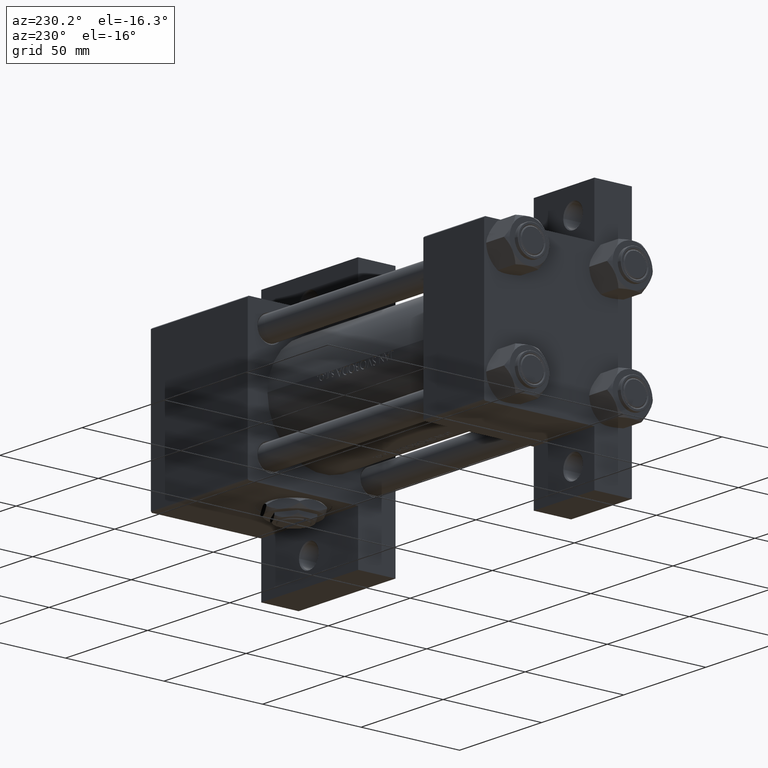
[diagram: clean part render]
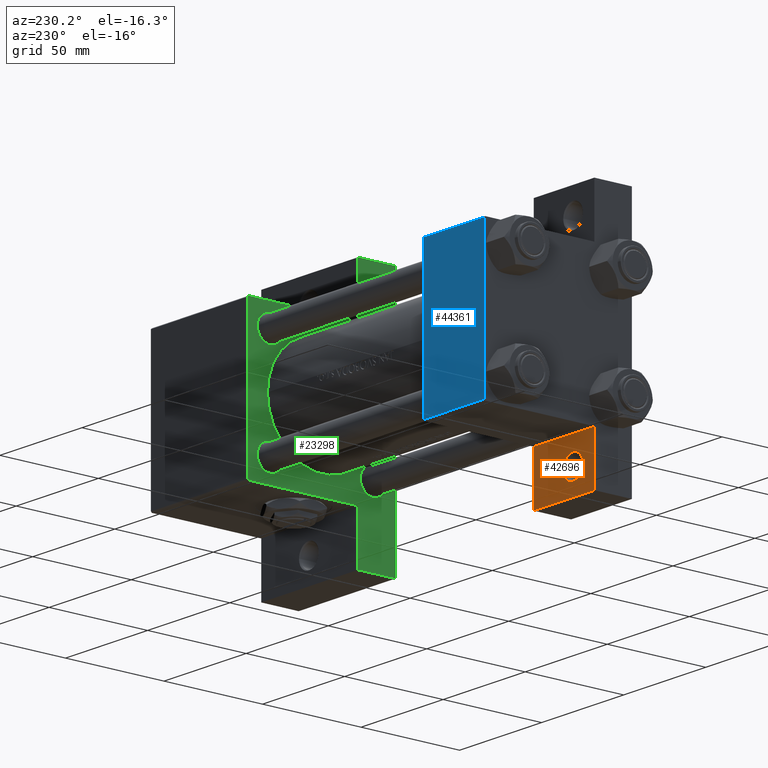
[diagram: same view with three faces highlighted in distinct colors, each labeled with its STEP entity id]
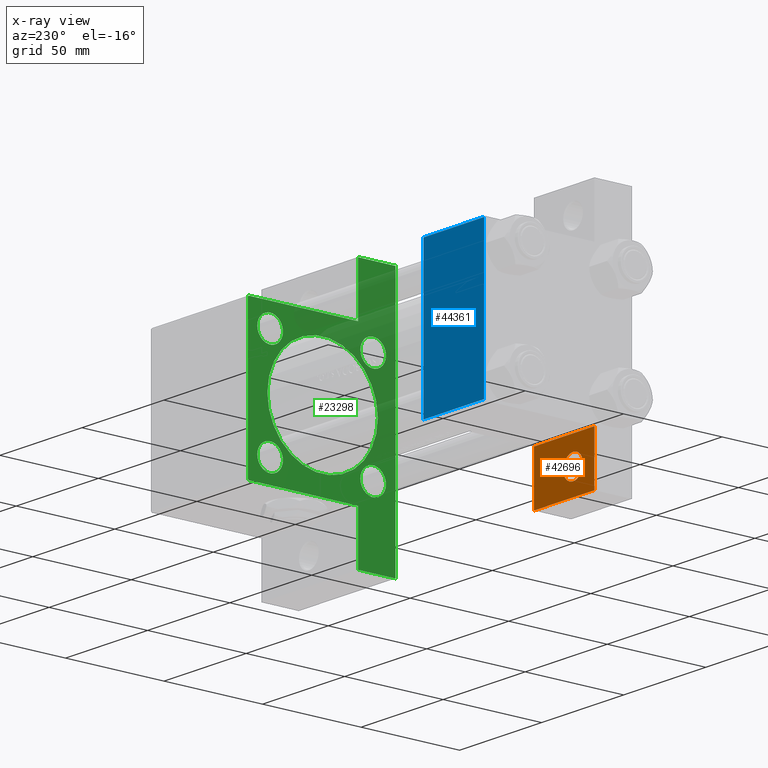
[diagram: x-ray of the same camera — body ghosted, the three highlighted faces saturated]
A machine part, auxiliary view with three faces highlighted in distinct colors.
The next image is the same camera in x-ray (body ghosted, the three faces saturated) — at least one of them is partly hidden behind the body in this view.
Their STEP definitions:

[orange] entity #42696 — the highlighted planar face has unit normal (0, -1, 0).
#319 = CARTESIAN_POINT ( 'NONE',  ( 1.595073532467135441E-14, 63.50000000000000000, -18.50000000000000355 ) ) ;
#596 = VECTOR ( 'NONE', #14226, 1000.000000000000000 ) ;
#942 = DIRECTION ( 'NONE',  ( 0.000000000000000000, 0.000000000000000000, -1.000000000000000000 ) ) ;
#1791 = EDGE_CURVE ( 'NONE', #32735, #48386, #44999, .T. ) ;
#3160 = AXIS2_PLACEMENT_3D ( 'NONE', #19047, #22535, #45952 ) ;
#4947 = VERTEX_POINT ( 'NONE', #20539 ) ;
#5034 = CARTESIAN_POINT ( 'NONE',  ( 12.99999999999999822, 50.99999999999998579, -18.50000000000000000 ) ) ;
#5996 = CARTESIAN_POINT ( 'NONE',  ( 1.595073532467135757E-14, 63.50000000000001421, -18.50000000000000355 ) ) ;
#10481 = AXIS2_PLACEMENT_3D ( 'NONE', #5034, #46642, #19260 ) ;
#11071 = ORIENTED_EDGE ( 'NONE', *, *, #14322, .T. ) ;
#11105 = CARTESIAN_POINT ( 'NONE',  ( 0.000000000000000000, 37.49999999999999289, -18.49999999999999645 ) ) ;
#14226 = DIRECTION ( 'NONE',  ( -2.877097866686192789E-16, -1.000000000000000000, 0.000000000000000000 ) ) ;
#14322 = EDGE_CURVE ( 'NONE', #30459, #32735, #40136, .T. ) ;
#15316 = CARTESIAN_POINT ( 'NONE',  ( 37.00000000000001421, 63.50000000000000000, -18.50000000000000355 ) ) ;
#15632 = CARTESIAN_POINT ( 'NONE',  ( 18.99950000000004735, 50.99999999999998579, -18.50000000000000000 ) ) ;
#16071 = CARTESIAN_POINT ( 'NONE',  ( 37.00000000000000711, 37.50000000000000711, -18.50000000000000355 ) ) ;
#16128 = DIRECTION ( 'NONE',  ( -1.000000000000000000, 0.000000000000000000, 0.000000000000000000 ) ) ;
#17072 = EDGE_LOOP ( 'NONE', ( #11071, #48253, #24653, #47952 ) ) ;
#18549 = DIRECTION ( 'NONE',  ( -1.000000000000000000, 0.000000000000000000, 0.000000000000000000 ) ) ;
#18974 = VECTOR ( 'NONE', #20632, 1000.000000000000000 ) ;
#19047 = CARTESIAN_POINT ( 'NONE',  ( 0.000000000000000000, 0.000000000000000000, -18.50000000000000000 ) ) ;
#19260 = DIRECTION ( 'NONE',  ( -1.000000000000000000, 0.000000000000000000, 0.000000000000000000 ) ) ;
#20539 = CARTESIAN_POINT ( 'NONE',  ( 7.000499999999947320, 50.99999999999998579, -18.50000000000000000 ) ) ;
#20632 = DIRECTION ( 'NONE',  ( 2.668805347656626678E-16, 1.000000000000000000, 0.000000000000000000 ) ) ;
#22335 = VERTEX_POINT ( 'NONE', #15316 ) ;
#22535 = DIRECTION ( 'NONE',  ( 0.000000000000000000, 0.000000000000000000, -1.000000000000000000 ) ) ;
#23029 = PLANE ( 'NONE',  #3160 ) ;
#24653 = ORIENTED_EDGE ( 'NONE', *, *, #41322, .T. ) ;
#26111 = EDGE_LOOP ( 'NONE', ( #33701, #35672 ) ) ;
#26502 = FACE_OUTER_BOUND ( 'NONE', #17072, .T. ) ;
#27026 = AXIS2_PLACEMENT_3D ( 'NONE', #38554, #942, #16128 ) ;
#29879 = VERTEX_POINT ( 'NONE', #15632 ) ;
#29992 = FACE_BOUND ( 'NONE', #26111, .T. ) ;
#30459 = VERTEX_POINT ( 'NONE', #319 ) ;
#31092 = LINE ( 'NONE', #46314, #44428 ) ;
#31567 = LINE ( 'NONE', #46788, #18974 ) ;
#32573 = CIRCLE ( 'NONE', #27026, 5.999500000000050015 ) ;
#32735 = VERTEX_POINT ( 'NONE', #11105 ) ;
#33701 = ORIENTED_EDGE ( 'NONE', *, *, #44019, .T. ) ;
#34323 = CIRCLE ( 'NONE', #10481, 5.999500000000050015 ) ;
#35672 = ORIENTED_EDGE ( 'NONE', *, *, #48624, .T. ) ;
#36815 = EDGE_CURVE ( 'NONE', #22335, #30459, #31092, .T. ) ;
#37266 = DIRECTION ( 'NONE',  ( 1.000000000000000000, -3.750753461571474945E-16, 0.000000000000000000 ) ) ;
#38554 = CARTESIAN_POINT ( 'NONE',  ( 12.99999999999999822, 50.99999999999998579, -18.50000000000000000 ) ) ;
#40136 = LINE ( 'NONE', #5996, #596 ) ;
#41322 = EDGE_CURVE ( 'NONE', #48386, #22335, #31567, .T. ) ;
#42696 = ADVANCED_FACE ( 'NONE', ( #29992, #26502 ), #23029, .F. ) ;
#44016 = CARTESIAN_POINT ( 'NONE',  ( 8.470280871287256020E-15, 37.50000000000002842, -18.49999999999999645 ) ) ;
#44019 = EDGE_CURVE ( 'NONE', #29879, #4947, #32573, .T. ) ;
#44428 = VECTOR ( 'NONE', #18549, 1000.000000000000000 ) ;
#44999 = LINE ( 'NONE', #44016, #48001 ) ;
#45952 = DIRECTION ( 'NONE',  ( -1.000000000000000000, 0.000000000000000000, -0.000000000000000000 ) ) ;
#46314 = CARTESIAN_POINT ( 'NONE',  ( 1.595073532467135441E-14, 63.50000000000000000, -18.50000000000000355 ) ) ;
#46642 = DIRECTION ( 'NONE',  ( 0.000000000000000000, 0.000000000000000000, -1.000000000000000000 ) ) ;
#46788 = CARTESIAN_POINT ( 'NONE',  ( 37.00000000000001421, 63.50000000000001421, -18.50000000000000355 ) ) ;
#47952 = ORIENTED_EDGE ( 'NONE', *, *, #36815, .T. ) ;
#48001 = VECTOR ( 'NONE', #37266, 1000.000000000000000 ) ;
#48253 = ORIENTED_EDGE ( 'NONE', *, *, #1791, .T. ) ;
#48386 = VERTEX_POINT ( 'NONE', #16071 ) ;
#48624 = EDGE_CURVE ( 'NONE', #4947, #29879, #34323, .T. ) ;

[blue] entity #44361 — the highlighted planar face has unit normal (0, -1, -0).
#2847 = DIRECTION ( 'NONE',  ( 0.000000000000000000, -1.000000000000000000, -9.251858538542971581E-17 ) ) ;
#2954 = VECTOR ( 'NONE', #2847, 1000.000000000000000 ) ;
#3255 = CARTESIAN_POINT ( 'NONE',  ( 37.00000000000000000, -37.00000000000000711, 37.49999999999999289 ) ) ;
#6499 = CARTESIAN_POINT ( 'NONE',  ( 0.000000000000000000, 36.99999999999999289, 37.50000000000000000 ) ) ;
#7651 = CARTESIAN_POINT ( 'NONE',  ( 37.00000000000000000, 36.99999999999999289, 37.50000000000000000 ) ) ;
#7857 = PLANE ( 'NONE',  #34997 ) ;
#9148 = CARTESIAN_POINT ( 'NONE',  ( 0.000000000000000000, 36.99999999999999289, 37.50000000000000000 ) ) ;
#9251 = EDGE_CURVE ( 'NONE', #22815, #18495, #28547, .T. ) ;
#9263 = CARTESIAN_POINT ( 'NONE',  ( 0.000000000000000000, 37.49999999999999289, 37.50000000000000000 ) ) ;
#10573 = CARTESIAN_POINT ( 'NONE',  ( 37.00000000000000000, 37.49999999999999289, 37.50000000000000000 ) ) ;
#11363 = ORIENTED_EDGE ( 'NONE', *, *, #33868, .F. ) ;
#13282 = ORIENTED_EDGE ( 'NONE', *, *, #9251, .T. ) ;
#14092 = VECTOR ( 'NONE', #24839, 1000.000000000000000 ) ;
#14326 = LINE ( 'NONE', #10573, #2954 ) ;
#16733 = DIRECTION ( 'NONE',  ( 0.000000000000000000, -1.000000000000000000, -9.251858538542971581E-17 ) ) ;
#18495 = VERTEX_POINT ( 'NONE', #6499 ) ;
#19806 = CARTESIAN_POINT ( 'NONE',  ( 37.00000000000000000, 37.49999999999999289, 37.50000000000000000 ) ) ;
#22815 = VERTEX_POINT ( 'NONE', #7651 ) ;
#23057 = DIRECTION ( 'NONE',  ( 0.000000000000000000, 1.000000000000000000, 9.251858538542971581E-17 ) ) ;
#24839 = DIRECTION ( 'NONE',  ( -1.000000000000000000, 0.000000000000000000, 0.000000000000000000 ) ) ;
#26524 = LINE ( 'NONE', #33270, #45063 ) ;
#28163 = LINE ( 'NONE', #9263, #33083 ) ;
#28547 = LINE ( 'NONE', #9148, #14092 ) ;
#29032 = ORIENTED_EDGE ( 'NONE', *, *, #32799, .T. ) ;
#30564 = EDGE_CURVE ( 'NONE', #18495, #38668, #28163, .T. ) ;
#30754 = VERTEX_POINT ( 'NONE', #3255 ) ;
#32799 = EDGE_CURVE ( 'NONE', #38668, #30754, #26524, .T. ) ;
#33083 = VECTOR ( 'NONE', #16733, 1000.000000000000000 ) ;
#33223 = ORIENTED_EDGE ( 'NONE', *, *, #30564, .T. ) ;
#33270 = CARTESIAN_POINT ( 'NONE',  ( 37.00000000000000000, -37.00000000000000711, 37.49999999999999289 ) ) ;
#33868 = EDGE_CURVE ( 'NONE', #22815, #30754, #14326, .T. ) ;
#34035 = CARTESIAN_POINT ( 'NONE',  ( 0.000000000000000000, -37.00000000000000711, 37.49999999999999289 ) ) ;
#34733 = DIRECTION ( 'NONE',  ( 0.000000000000000000, 9.251858538542971581E-17, -1.000000000000000000 ) ) ;
#34997 = AXIS2_PLACEMENT_3D ( 'NONE', #19806, #34733, #23057 ) ;
#38668 = VERTEX_POINT ( 'NONE', #34035 ) ;
#40898 = EDGE_LOOP ( 'NONE', ( #33223, #29032, #11363, #13282 ) ) ;
#41737 = DIRECTION ( 'NONE',  ( 1.000000000000000000, 0.000000000000000000, 0.000000000000000000 ) ) ;
#41992 = FACE_OUTER_BOUND ( 'NONE', #40898, .T. ) ;
#44361 = ADVANCED_FACE ( 'NONE', ( #41992 ), #7857, .F. ) ;
#45063 = VECTOR ( 'NONE', #41737, 1000.000000000000000 ) ;

[green] entity #23298 — the highlighted planar face has unit normal (-1, 0, 0).
#7 = CARTESIAN_POINT ( 'NONE',  ( 144.0000000000000000, 3.429011037612589276E-15, -28.50000000000000000 ) ) ;
#217 = VERTEX_POINT ( 'NONE', #41351 ) ;
#578 = VERTEX_POINT ( 'NONE', #15552 ) ;
#1364 = VERTEX_POINT ( 'NONE', #7 ) ;
#1460 = DIRECTION ( 'NONE',  ( 0.000000000000000000, 1.000000000000000000, 0.000000000000000000 ) ) ;
#1692 = FACE_BOUND ( 'NONE', #46158, .T. ) ;
#1767 = CARTESIAN_POINT ( 'NONE',  ( 144.0000000000000000, -37.50000000000000000, -18.50000000000000000 ) ) ;
#2792 = ORIENTED_EDGE ( 'NONE', *, *, #26667, .T. ) ;
#2951 = CARTESIAN_POINT ( 'NONE',  ( 144.0000000000000000, 26.14999999999999858, 32.65000000000000568 ) ) ;
#2965 = CARTESIAN_POINT ( 'NONE',  ( 144.0000000000000000, 26.14999999999999858, -32.65000000000001279 ) ) ;
#2967 = ORIENTED_EDGE ( 'NONE', *, *, #45633, .T. ) ;
#3061 = ORIENTED_EDGE ( 'NONE', *, *, #16899, .T. ) ;
#3106 = ORIENTED_EDGE ( 'NONE', *, *, #20677, .T. ) ;
#3307 = DIRECTION ( 'NONE',  ( 0.000000000000000000, 0.000000000000000000, 1.000000000000000000 ) ) ;
#3454 = DIRECTION ( 'NONE',  ( 0.000000000000000000, -1.000000000000000000, -1.850371707708594316E-16 ) ) ;
#3607 = EDGE_CURVE ( 'NONE', #1364, #41815, #46510, .T. ) ;
#3798 = VERTEX_POINT ( 'NONE', #13590 ) ;
#4104 = CARTESIAN_POINT ( 'NONE',  ( 144.0000000000000000, 37.50000000000000000, 37.49999999999999289 ) ) ;
#4222 = DIRECTION ( 'NONE',  ( 1.000000000000000000, 0.000000000000000000, -0.000000000000000000 ) ) ;
#4342 = LINE ( 'NONE', #34725, #16661 ) ;
#4431 = CARTESIAN_POINT ( 'NONE',  ( 144.0000000000000000, 37.50000000000000000, 37.49999999999999289 ) ) ;
#4507 = CARTESIAN_POINT ( 'NONE',  ( 144.0000000000000000, -36.99999999999994316, 37.49999999999997868 ) ) ;
#5066 = CIRCLE ( 'NONE', #15407, 6.500000000000008882 ) ;
#6152 = FACE_OUTER_BOUND ( 'NONE', #20440, .T. ) ;
#6397 = VECTOR ( 'NONE', #1460, 1000.000000000000000 ) ;
#6708 = ORIENTED_EDGE ( 'NONE', *, *, #46987, .T. ) ;
#7047 = DIRECTION ( 'NONE',  ( 1.000000000000000000, 0.000000000000000000, -0.000000000000000000 ) ) ;
#7213 = DIRECTION ( 'NONE',  ( 0.000000000000000000, -9.251858538542972814E-17, -1.000000000000000000 ) ) ;
#7297 = LINE ( 'NONE', #15517, #32977 ) ;
#7415 = CARTESIAN_POINT ( 'NONE',  ( 144.0000000000000000, 26.14999999999999858, 26.15000000000000213 ) ) ;
#7700 = CARTESIAN_POINT ( 'NONE',  ( 144.0000000000000000, -37.50000000000000000, 37.49999999999997868 ) ) ;
#7831 = CARTESIAN_POINT ( 'NONE',  ( 144.0000000000000000, -26.14999999999999147, -26.15000000000000924 ) ) ;
#7972 = VECTOR ( 'NONE', #7213, 1000.000000000000000 ) ;
#8010 = CARTESIAN_POINT ( 'NONE',  ( 144.0000000000000284, 63.49999999999997158, -37.50000000000000000 ) ) ;
#8063 = EDGE_LOOP ( 'NONE', ( #6708, #10012 ) ) ;
#8225 = CARTESIAN_POINT ( 'NONE',  ( 144.0000000000000000, 0.000000000000000000, -0.5000000000000004441 ) ) ;
#8546 = VERTEX_POINT ( 'NONE', #22519 ) ;
#8653 = CIRCLE ( 'NONE', #10266, 6.500000000000008882 ) ;
#8752 = DIRECTION ( 'NONE',  ( 1.000000000000000000, 0.000000000000000000, -0.000000000000000000 ) ) ;
#8929 = EDGE_CURVE ( 'NONE', #33828, #35925, #26671, .T. ) ;
#9002 = CARTESIAN_POINT ( 'NONE',  ( 144.0000000000000000, 26.14999999999999858, 26.15000000000000213 ) ) ;
#9458 = ORIENTED_EDGE ( 'NONE', *, *, #38161, .T. ) ;
#10012 = ORIENTED_EDGE ( 'NONE', *, *, #44022, .T. ) ;
#10266 = AXIS2_PLACEMENT_3D ( 'NONE', #10599, #41236, #37485 ) ;
#10599 = CARTESIAN_POINT ( 'NONE',  ( 144.0000000000000000, -26.14999999999999147, 26.15000000000000924 ) ) ;
#11007 = CIRCLE ( 'NONE', #18967, 28.00000000000000000 ) ;
#11084 = DIRECTION ( 'NONE',  ( 0.000000000000000000, 0.000000000000000000, 1.000000000000000000 ) ) ;
#11482 = EDGE_LOOP ( 'NONE', ( #28057, #42384 ) ) ;
#11499 = CARTESIAN_POINT ( 'NONE',  ( 144.0000000000000284, 63.49999999999997158, -18.50000000000000000 ) ) ;
#11747 = DIRECTION ( 'NONE',  ( 0.000000000000000000, -1.000000000000000000, 0.000000000000000000 ) ) ;
#12087 = DIRECTION ( 'NONE',  ( 1.000000000000000000, 0.000000000000000000, -0.000000000000000000 ) ) ;
#12193 = CARTESIAN_POINT ( 'NONE',  ( 144.0000000000000000, -26.14999999999999147, 26.15000000000000924 ) ) ;
#12375 = AXIS2_PLACEMENT_3D ( 'NONE', #7415, #45783, #15397 ) ;
#13144 = FACE_BOUND ( 'NONE', #8063, .T. ) ;
#13402 = CARTESIAN_POINT ( 'NONE',  ( 144.0000000000000000, 0.000000000000000000, 0.000000000000000000 ) ) ;
#13590 = CARTESIAN_POINT ( 'NONE',  ( 144.0000000000000000, 26.14999999999999858, -19.64999999999999503 ) ) ;
#13625 = CARTESIAN_POINT ( 'NONE',  ( 144.0000000000000000, -26.14999999999999147, -32.65000000000002700 ) ) ;
#14343 = AXIS2_PLACEMENT_3D ( 'NONE', #42053, #19376, #30812 ) ;
#15332 = CARTESIAN_POINT ( 'NONE',  ( 144.0000000000000284, 63.49999999999997158, -18.50000000000000000 ) ) ;
#15397 = DIRECTION ( 'NONE',  ( 0.000000000000000000, 0.000000000000000000, 1.000000000000000000 ) ) ;
#15407 = AXIS2_PLACEMENT_3D ( 'NONE', #41182, #7047, #3307 ) ;
#15517 = CARTESIAN_POINT ( 'NONE',  ( 144.0000000000000000, 37.25000000000000711, 37.25000000000000711 ) ) ;
#15552 = CARTESIAN_POINT ( 'NONE',  ( 144.0000000000000000, -26.14999999999999147, 32.65000000000001990 ) ) ;
#15592 = VERTEX_POINT ( 'NONE', #42138 ) ;
#15819 = CARTESIAN_POINT ( 'NONE',  ( 144.0000000000000000, 26.14999999999999858, -26.15000000000000213 ) ) ;
#15841 = VERTEX_POINT ( 'NONE', #41105 ) ;
#16105 = DIRECTION ( 'NONE',  ( 1.000000000000000000, 0.000000000000000000, 0.000000000000000000 ) ) ;
#16149 = LINE ( 'NONE', #31818, #6397 ) ;
#16661 = VECTOR ( 'NONE', #34243, 1000.000000000000000 ) ;
#16899 = EDGE_CURVE ( 'NONE', #41815, #1364, #11007, .T. ) ;
#17897 = EDGE_CURVE ( 'NONE', #19150, #217, #41281, .T. ) ;
#17957 = EDGE_CURVE ( 'NONE', #27690, #578, #8653, .T. ) ;
#18283 = LINE ( 'NONE', #44946, #37426 ) ;
#18373 = CIRCLE ( 'NONE', #37465, 6.500000000000008882 ) ;
#18604 = ORIENTED_EDGE ( 'NONE', *, *, #3607, .T. ) ;
#18967 = AXIS2_PLACEMENT_3D ( 'NONE', #38533, #16105, #39271 ) ;
#19150 = VERTEX_POINT ( 'NONE', #13625 ) ;
#19376 = DIRECTION ( 'NONE',  ( 1.000000000000000000, 0.000000000000000000, -0.000000000000000000 ) ) ;
#19544 = EDGE_CURVE ( 'NONE', #578, #27690, #33360, .T. ) ;
#19619 = VECTOR ( 'NONE', #11747, 1000.000000000000000 ) ;
#19941 = EDGE_LOOP ( 'NONE', ( #45023, #42527 ) ) ;
#20125 = ORIENTED_EDGE ( 'NONE', *, *, #8929, .T. ) ;
#20440 = EDGE_LOOP ( 'NONE', ( #41905, #33392, #2792, #2967, #9458, #20125, #47466, #3106, #32821, #41706 ) ) ;
#20677 = EDGE_CURVE ( 'NONE', #23131, #38252, #16149, .T. ) ;
#21046 = AXIS2_PLACEMENT_3D ( 'NONE', #8225, #23423, #38625 ) ;
#21309 = ORIENTED_EDGE ( 'NONE', *, *, #17957, .T. ) ;
#21587 = EDGE_CURVE ( 'NONE', #15841, #38252, #46072, .T. ) ;
#21784 = DIRECTION ( 'NONE',  ( 1.067522139062651657E-15, 1.000000000000000000, -0.000000000000000000 ) ) ;
#22519 = CARTESIAN_POINT ( 'NONE',  ( 144.0000000000000000, 37.50000000000000000, 37.00000000000002132 ) ) ;
#22954 = CARTESIAN_POINT ( 'NONE',  ( 144.0000000000000000, 37.50000000000000000, -37.50000000000000000 ) ) ;
#23131 = VERTEX_POINT ( 'NONE', #41805 ) ;
#23298 = ADVANCED_FACE ( 'NONE', ( #35792, #32777, #13144, #43275, #1692, #6152 ), #47510, .T. ) ;
#23423 = DIRECTION ( 'NONE',  ( 1.000000000000000000, 0.000000000000000000, 0.000000000000000000 ) ) ;
#24571 = VECTOR ( 'NONE', #3454, 1000.000000000000000 ) ;
#25777 = DIRECTION ( 'NONE',  ( 1.000000000000000000, 0.000000000000000000, -0.000000000000000000 ) ) ;
#26216 = DIRECTION ( 'NONE',  ( 0.000000000000000000, 0.7071067811865474617, -0.7071067811865474617 ) ) ;
#26224 = EDGE_CURVE ( 'NONE', #26280, #15592, #29583, .T. ) ;
#26280 = VERTEX_POINT ( 'NONE', #2951 ) ;
#26490 = VERTEX_POINT ( 'NONE', #27539 ) ;
#26545 = VECTOR ( 'NONE', #45234, 1000.000000000000000 ) ;
#26667 = EDGE_CURVE ( 'NONE', #8546, #45693, #30739, .T. ) ;
#26670 = DIRECTION ( 'NONE',  ( 0.000000000000000000, 0.000000000000000000, -1.000000000000000000 ) ) ;
#26671 = LINE ( 'NONE', #22954, #19619 ) ;
#27045 = EDGE_CURVE ( 'NONE', #217, #19150, #5066, .T. ) ;
#27450 = CIRCLE ( 'NONE', #12375, 6.499999999999995559 ) ;
#27539 = CARTESIAN_POINT ( 'NONE',  ( 144.0000000000000000, 37.00000000000002842, 37.49999999999999289 ) ) ;
#27690 = VERTEX_POINT ( 'NONE', #36455 ) ;
#27790 = EDGE_CURVE ( 'NONE', #26490, #8546, #7297, .T. ) ;
#28057 = ORIENTED_EDGE ( 'NONE', *, *, #27045, .T. ) ;
#29583 = CIRCLE ( 'NONE', #35951, 6.499999999999995559 ) ;
#29805 = EDGE_CURVE ( 'NONE', #15592, #26280, #27450, .T. ) ;
#30163 = LINE ( 'NONE', #11499, #41294 ) ;
#30739 = LINE ( 'NONE', #4104, #26545 ) ;
#30812 = DIRECTION ( 'NONE',  ( 0.000000000000000000, 0.000000000000000000, 1.000000000000000000 ) ) ;
#31376 = EDGE_LOOP ( 'NONE', ( #44713, #21309 ) ) ;
#31818 = CARTESIAN_POINT ( 'NONE',  ( 144.0000000000000000, -63.50000000000000000, -18.50000000000000000 ) ) ;
#32006 = CARTESIAN_POINT ( 'NONE',  ( 144.0000000000000000, -63.50000000000000000, -37.50000000000000000 ) ) ;
#32777 = FACE_BOUND ( 'NONE', #19941, .T. ) ;
#32821 = ORIENTED_EDGE ( 'NONE', *, *, #21587, .F. ) ;
#32977 = VECTOR ( 'NONE', #26216, 1000.000000000000114 ) ;
#33360 = CIRCLE ( 'NONE', #38962, 6.500000000000008882 ) ;
#33392 = ORIENTED_EDGE ( 'NONE', *, *, #27790, .T. ) ;
#33828 = VERTEX_POINT ( 'NONE', #8010 ) ;
#34243 = DIRECTION ( 'NONE',  ( 0.000000000000000000, 0.000000000000000000, -1.000000000000000000 ) ) ;
#34725 = CARTESIAN_POINT ( 'NONE',  ( 144.0000000000000000, -63.50000000000000000, -18.50000000000000000 ) ) ;
#35537 = DIRECTION ( 'NONE',  ( -1.000000000000000000, -0.000000000000000000, 0.000000000000000000 ) ) ;
#35792 = FACE_BOUND ( 'NONE', #31376, .T. ) ;
#35925 = VERTEX_POINT ( 'NONE', #32006 ) ;
#35951 = AXIS2_PLACEMENT_3D ( 'NONE', #9002, #8752, #42154 ) ;
#36261 = DIRECTION ( 'NONE',  ( -0.000000000000000000, 0.7071067811865474617, 0.7071067811865474617 ) ) ;
#36281 = DIRECTION ( 'NONE',  ( 0.000000000000000000, 0.000000000000000000, 1.000000000000000000 ) ) ;
#36455 = CARTESIAN_POINT ( 'NONE',  ( 144.0000000000000000, -26.14999999999999147, 19.65000000000000213 ) ) ;
#36592 = VERTEX_POINT ( 'NONE', #4507 ) ;
#36637 = VECTOR ( 'NONE', #36261, 1000.000000000000114 ) ;
#37426 = VECTOR ( 'NONE', #21784, 1000.000000000000000 ) ;
#37465 = AXIS2_PLACEMENT_3D ( 'NONE', #15819, #12087, #37508 ) ;
#37485 = DIRECTION ( 'NONE',  ( 0.000000000000000000, 0.000000000000000000, 1.000000000000000000 ) ) ;
#37508 = DIRECTION ( 'NONE',  ( 0.000000000000000000, 0.000000000000000000, 1.000000000000000000 ) ) ;
#37594 = EDGE_CURVE ( 'NONE', #26490, #36592, #38078, .T. ) ;
#38078 = LINE ( 'NONE', #4431, #24571 ) ;
#38161 = EDGE_CURVE ( 'NONE', #43529, #33828, #30163, .T. ) ;
#38252 = VERTEX_POINT ( 'NONE', #1767 ) ;
#38533 = CARTESIAN_POINT ( 'NONE',  ( 144.0000000000000000, 0.000000000000000000, -0.5000000000000004441 ) ) ;
#38625 = DIRECTION ( 'NONE',  ( 0.000000000000000000, 0.000000000000000000, -1.000000000000000000 ) ) ;
#38887 = AXIS2_PLACEMENT_3D ( 'NONE', #7831, #25777, #11084 ) ;
#38962 = AXIS2_PLACEMENT_3D ( 'NONE', #12193, #4222, #46563 ) ;
#39271 = DIRECTION ( 'NONE',  ( 0.000000000000000000, 0.000000000000000000, -1.000000000000000000 ) ) ;
#40268 = LINE ( 'NONE', #44500, #36637 ) ;
#40965 = CARTESIAN_POINT ( 'NONE',  ( 144.0000000000000000, 37.50000000000000000, -18.50000000000000355 ) ) ;
#41105 = CARTESIAN_POINT ( 'NONE',  ( 144.0000000000000000, -37.50000000000000000, 36.99999999999992184 ) ) ;
#41182 = CARTESIAN_POINT ( 'NONE',  ( 144.0000000000000000, -26.14999999999999147, -26.15000000000000924 ) ) ;
#41236 = DIRECTION ( 'NONE',  ( 1.000000000000000000, 0.000000000000000000, -0.000000000000000000 ) ) ;
#41281 = CIRCLE ( 'NONE', #38887, 6.500000000000008882 ) ;
#41294 = VECTOR ( 'NONE', #26670, 1000.000000000000000 ) ;
#41351 = CARTESIAN_POINT ( 'NONE',  ( 144.0000000000000000, -26.14999999999999147, -19.65000000000000213 ) ) ;
#41706 = ORIENTED_EDGE ( 'NONE', *, *, #46151, .T. ) ;
#41805 = CARTESIAN_POINT ( 'NONE',  ( 144.0000000000000000, -63.50000000000000000, -18.50000000000000000 ) ) ;
#41815 = VERTEX_POINT ( 'NONE', #46666 ) ;
#41905 = ORIENTED_EDGE ( 'NONE', *, *, #37594, .F. ) ;
#42053 = CARTESIAN_POINT ( 'NONE',  ( 144.0000000000000000, 26.14999999999999858, -26.15000000000000213 ) ) ;
#42138 = CARTESIAN_POINT ( 'NONE',  ( 144.0000000000000000, 26.14999999999999858, 19.65000000000000568 ) ) ;
#42154 = DIRECTION ( 'NONE',  ( 0.000000000000000000, 0.000000000000000000, 1.000000000000000000 ) ) ;
#42384 = ORIENTED_EDGE ( 'NONE', *, *, #17897, .T. ) ;
#42527 = ORIENTED_EDGE ( 'NONE', *, *, #29805, .T. ) ;
#43275 = FACE_BOUND ( 'NONE', #11482, .T. ) ;
#43512 = EDGE_CURVE ( 'NONE', #23131, #35925, #4342, .T. ) ;
#43529 = VERTEX_POINT ( 'NONE', #15332 ) ;
#43776 = CIRCLE ( 'NONE', #14343, 6.500000000000008882 ) ;
#44022 = EDGE_CURVE ( 'NONE', #47689, #3798, #43776, .T. ) ;
#44500 = CARTESIAN_POINT ( 'NONE',  ( 144.0000000000000000, -37.24999999999995737, 37.24999999999995737 ) ) ;
#44713 = ORIENTED_EDGE ( 'NONE', *, *, #19544, .T. ) ;
#44946 = CARTESIAN_POINT ( 'NONE',  ( 144.0000000000000284, 63.49999999999997158, -18.50000000000000000 ) ) ;
#45023 = ORIENTED_EDGE ( 'NONE', *, *, #26224, .T. ) ;
#45234 = DIRECTION ( 'NONE',  ( 0.000000000000000000, 0.000000000000000000, -1.000000000000000000 ) ) ;
#45633 = EDGE_CURVE ( 'NONE', #45693, #43529, #18283, .T. ) ;
#45693 = VERTEX_POINT ( 'NONE', #40965 ) ;
#45783 = DIRECTION ( 'NONE',  ( 1.000000000000000000, 0.000000000000000000, -0.000000000000000000 ) ) ;
#46072 = LINE ( 'NONE', #7700, #7972 ) ;
#46151 = EDGE_CURVE ( 'NONE', #15841, #36592, #40268, .T. ) ;
#46158 = EDGE_LOOP ( 'NONE', ( #3061, #18604 ) ) ;
#46510 = CIRCLE ( 'NONE', #21046, 28.00000000000000000 ) ;
#46563 = DIRECTION ( 'NONE',  ( 0.000000000000000000, 0.000000000000000000, 1.000000000000000000 ) ) ;
#46666 = CARTESIAN_POINT ( 'NONE',  ( 144.0000000000000000, 0.000000000000000000, 27.50000000000000000 ) ) ;
#46987 = EDGE_CURVE ( 'NONE', #3798, #47689, #18373, .T. ) ;
#47029 = AXIS2_PLACEMENT_3D ( 'NONE', #13402, #35537, #36281 ) ;
#47466 = ORIENTED_EDGE ( 'NONE', *, *, #43512, .F. ) ;
#47510 = PLANE ( 'NONE',  #47029 ) ;
#47689 = VERTEX_POINT ( 'NONE', #2965 ) ;